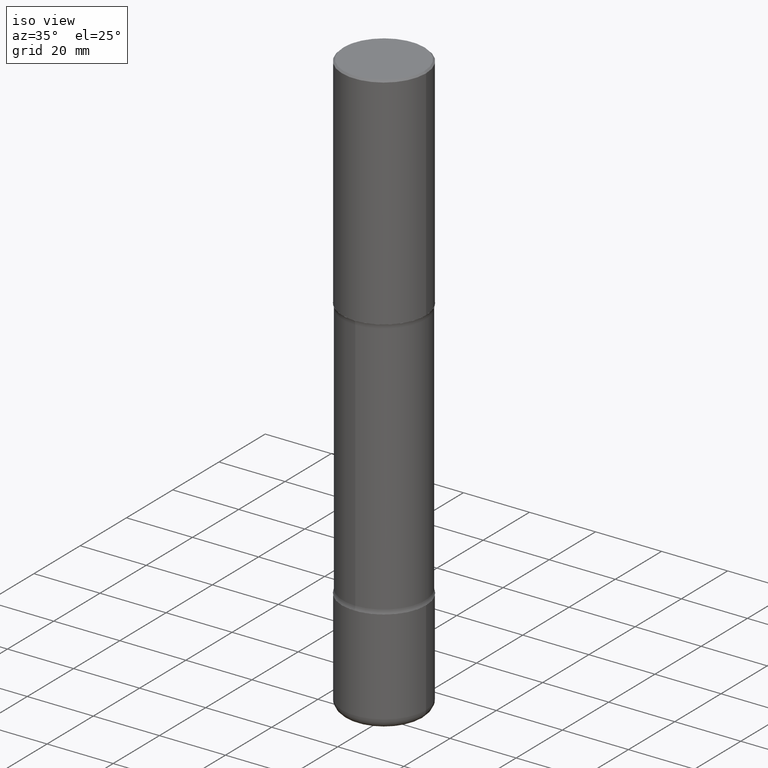
[diagram: clean part render]
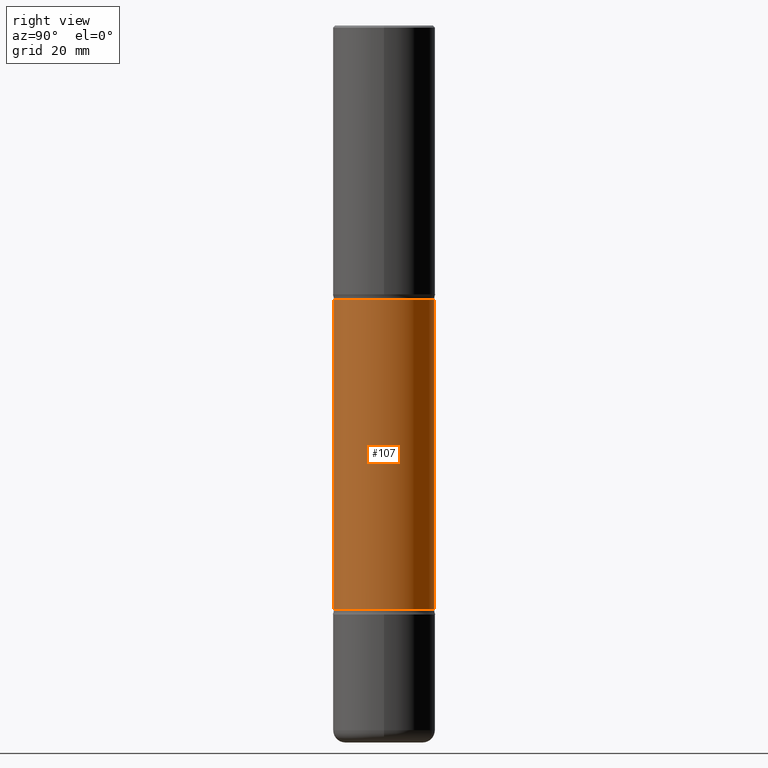
[diagram: tour spotlight — one face highlighted and labeled with its STEP entity id]
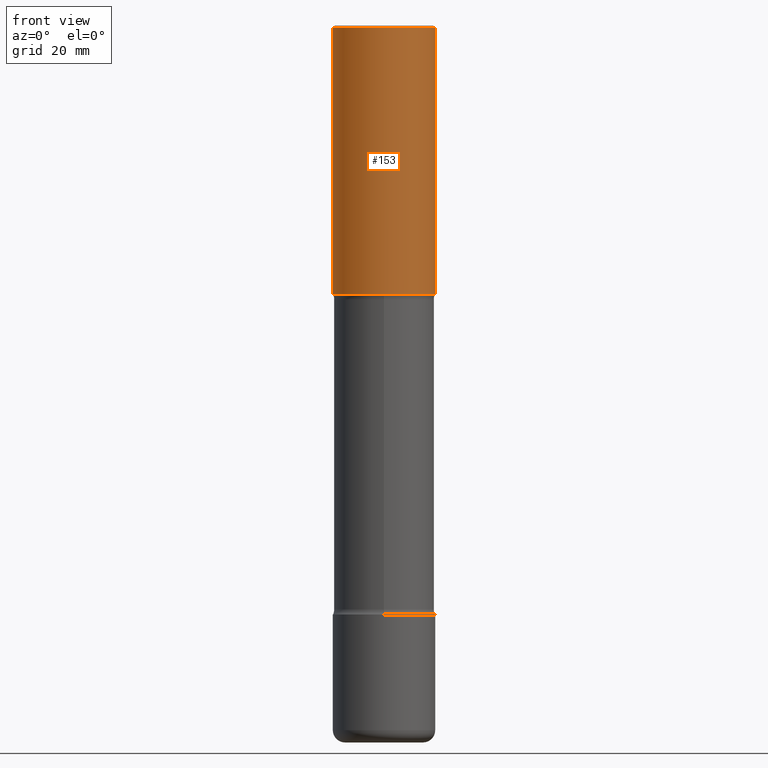
[diagram: tour spotlight — one face highlighted and labeled with its STEP entity id]
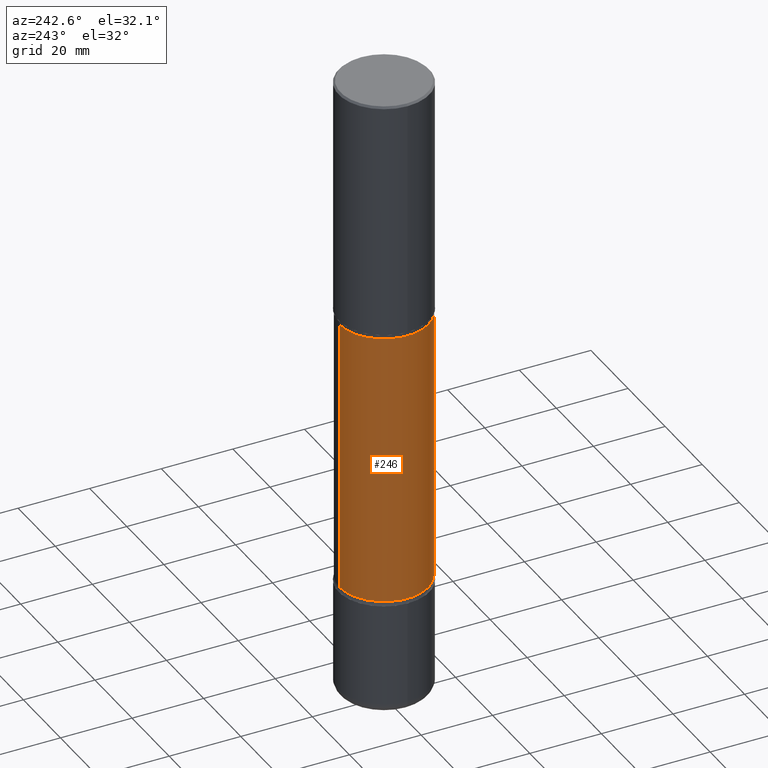
[diagram: tour spotlight — one face highlighted and labeled with its STEP entity id]
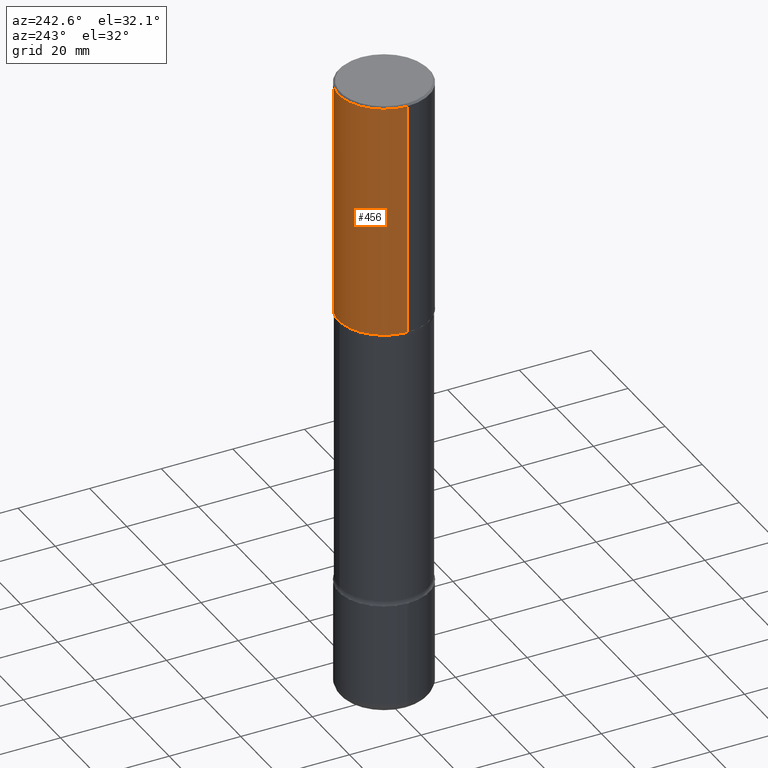
[diagram: tour spotlight — one face highlighted and labeled with its STEP entity id]
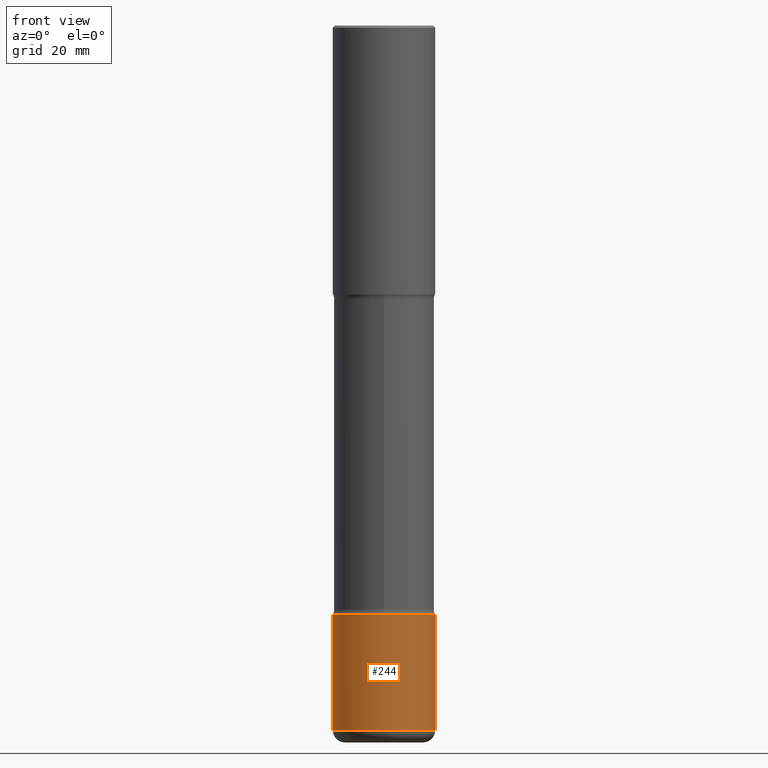
[diagram: tour spotlight — one face highlighted and labeled with its STEP entity id]
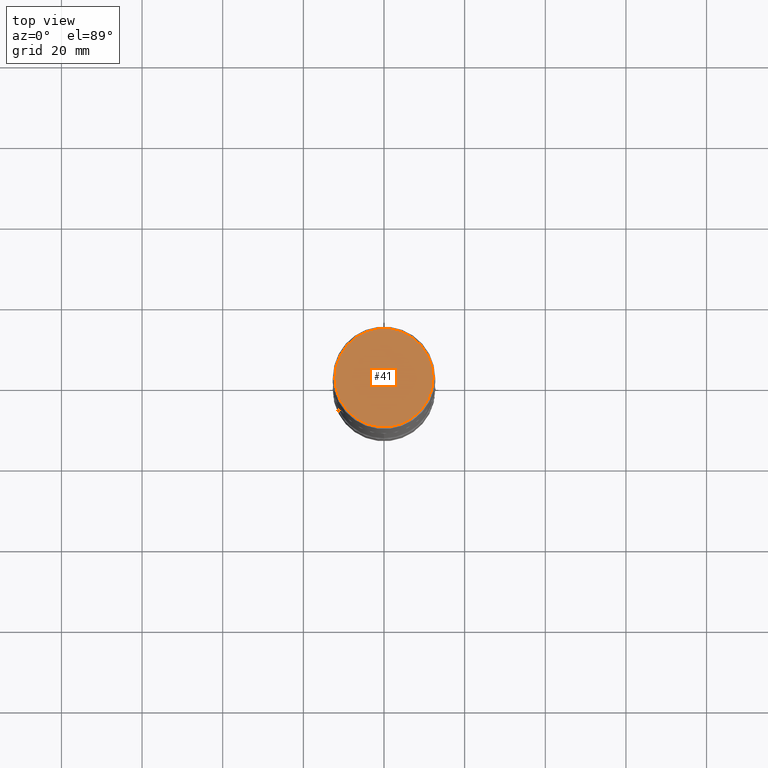
[diagram: tour spotlight — one face highlighted and labeled with its STEP entity id]
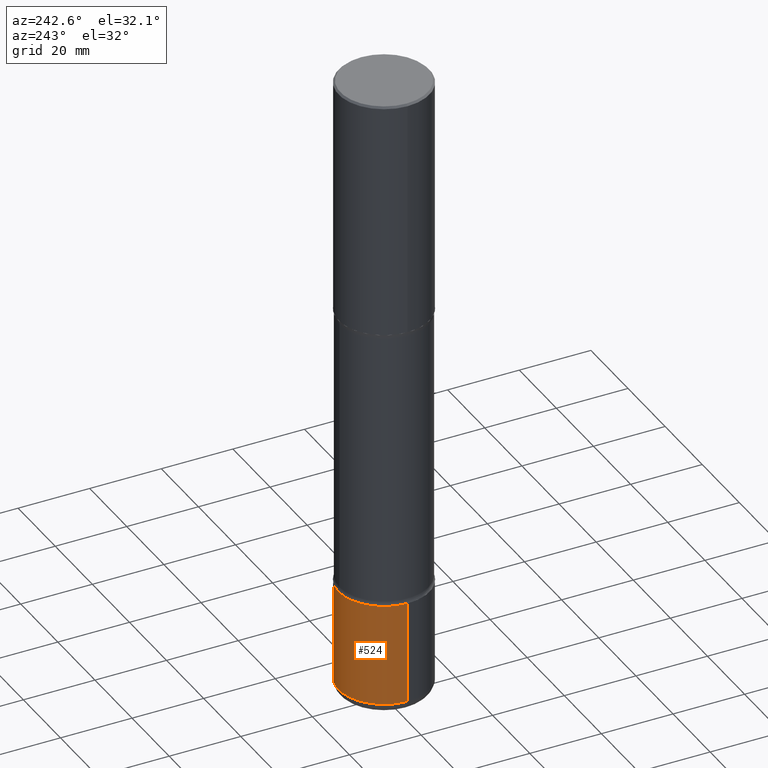
[diagram: tour spotlight — one face highlighted and labeled with its STEP entity id]
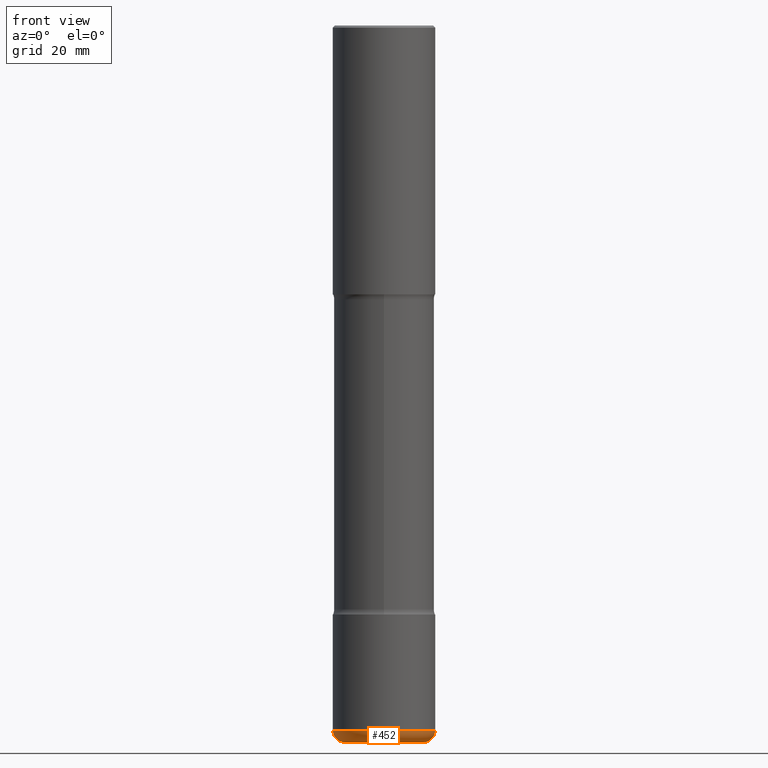
[diagram: tour spotlight — one face highlighted and labeled with its STEP entity id]
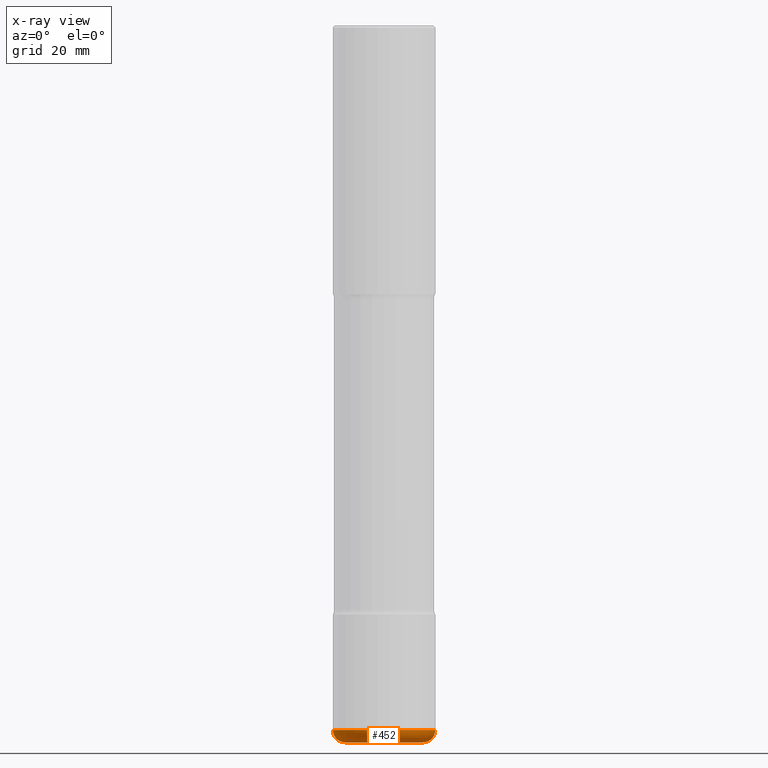
[diagram: x-ray of the same camera — body ghosted, this tour face saturated]
A machine part: a face-by-face anatomy tour. The part has 20 B-rep faces; the first image is the clean iso view, then the 8 largest visible faces are spotlighted one at a time (largest first), each with its STEP entity span.

Face 1 — right view, entity #107. In plain terms, the highlighted cylindrical surface (partial cylindrical patch) has radius 12.446 mm, axis along (0, -0, -1).
Definition (entity closure, byte-faithful):
#3 = ORIENTED_EDGE ( 'NONE', *, *, #283, .F. ) ;
#5 = LINE ( 'NONE', #340, #444 ) ;
#40 = LINE ( 'NONE', #239, #154 ) ;
#54 = VERTEX_POINT ( 'NONE', #401 ) ;
#58 = DIRECTION ( 'NONE',  ( 6.982962677686266711E-15, 1.000000000000000000, -4.460159989655937807E-15 ) ) ;
#107 = ADVANCED_FACE ( 'NONE', ( #280 ), #494, .T. ) ;
#113 = ORIENTED_EDGE ( 'NONE', *, *, #478, .T. ) ;
#120 = CIRCLE ( 'NONE', #140, 0.4900000000000003242 ) ;
#129 = DIRECTION ( 'NONE',  ( 2.521774376508615199E-29, -3.382207419096575054E-15, -1.000000000000000000 ) ) ;
#140 = AXIS2_PLACEMENT_3D ( 'NONE', #162, #368, #454 ) ;
#154 = VECTOR ( 'NONE', #366, 39.37007874015748143 ) ;
#160 = VERTEX_POINT ( 'NONE', #176 ) ;
#162 = CARTESIAN_POINT ( 'NONE',  ( 6.304441918352541244E-29, -9.672313161292138193E-15, -2.673989794855665014 ) ) ;
#174 = VERTEX_POINT ( 'NONE', #474 ) ;
#176 = CARTESIAN_POINT ( 'NONE',  ( 3.421651712066335533E-15, 0.4899999999999906097, -2.673989794855666347 ) ) ;
#186 = AXIS2_PLACEMENT_3D ( 'NONE', #476, #310, #58 ) ;
#194 = AXIS2_PLACEMENT_3D ( 'NONE', #351, #384, #463 ) ;
#221 = ORIENTED_EDGE ( 'NONE', *, *, #234, .F. ) ;
#222 = CIRCLE ( 'NONE', #194, 0.4900000000000002132 ) ;
#234 = EDGE_CURVE ( 'NONE', #549, #174, #222, .T. ) ;
#239 = CARTESIAN_POINT ( 'NONE',  ( -3.361644018907879661E-15, -0.4900000000000245270, -6.999999999999998224 ) ) ;
#280 = FACE_OUTER_BOUND ( 'NONE', #395, .T. ) ;
#283 = EDGE_CURVE ( 'NONE', #160, #549, #5, .T. ) ;
#310 = DIRECTION ( 'NONE',  ( 2.521774376508615199E-29, -3.382207419096575054E-15, -1.000000000000000000 ) ) ;
#340 = CARTESIAN_POINT ( 'NONE',  ( 3.421651712066444395E-15, 0.4899999999999758993, -7.000000000000002665 ) ) ;
#351 = CARTESIAN_POINT ( 'NONE',  ( 1.393790442618711164E-28, -1.991032405072724823E-14, -5.701010205144338094 ) ) ;
#366 = DIRECTION ( 'NONE',  ( 2.521774376508615199E-29, -3.382207419096575054E-15, -1.000000000000000000 ) ) ;
#368 = DIRECTION ( 'NONE',  ( 2.521774376508615199E-29, -3.382207419096575054E-15, -1.000000000000000000 ) ) ;
#384 = DIRECTION ( 'NONE',  ( 2.521774376508615199E-29, -3.382207419096575054E-15, -1.000000000000000000 ) ) ;
#395 = EDGE_LOOP ( 'NONE', ( #484, #113, #221, #3 ) ) ;
#401 = CARTESIAN_POINT ( 'NONE',  ( -3.395946508896849543E-15, -0.4900000000000100941, -2.673989794855663238 ) ) ;
#444 = VECTOR ( 'NONE', #129, 39.37007874015748143 ) ;
#454 = DIRECTION ( 'NONE',  ( 6.982962677686265922E-15, 1.000000000000000000, -3.345119992241952764E-15 ) ) ;
#461 = CARTESIAN_POINT ( 'NONE',  ( 3.421651712066411263E-15, 0.4899999999999802847, -5.701010205144339871 ) ) ;
#463 = DIRECTION ( 'NONE',  ( 6.982962677686266711E-15, 1.000000000000000000, -4.460159989655937807E-15 ) ) ;
#474 = CARTESIAN_POINT ( 'NONE',  ( -3.395946508896770262E-15, -0.4900000000000201972, -5.701010205144335430 ) ) ;
#476 = CARTESIAN_POINT ( 'NONE',  ( 1.721366360620030576E-28, -2.430377697221880819E-14, -7.000000000000000888 ) ) ;
#478 = EDGE_CURVE ( 'NONE', #54, #174, #40, .T. ) ;
#484 = ORIENTED_EDGE ( 'NONE', *, *, #501, .T. ) ;
#494 = CYLINDRICAL_SURFACE ( 'NONE', #186, 0.4900000000000002132 ) ;
#501 = EDGE_CURVE ( 'NONE', #160, #54, #120, .T. ) ;
#549 = VERTEX_POINT ( 'NONE', #461 ) ;

Face 2 — front view, entity #153. In plain terms, the highlighted cylindrical surface (partial cylindrical patch) has radius 12.7 mm, axis along (-0, 0, 1).
Definition (entity closure, byte-faithful):
#7 = AXIS2_PLACEMENT_3D ( 'NONE', #155, #455, #373 ) ;
#8 = DIRECTION ( 'NONE',  ( 1.000000000000000000, -6.982962677686267499E-15, 4.876176775795936353E-29 ) ) ;
#61 = VERTEX_POINT ( 'NONE', #149 ) ;
#68 = CARTESIAN_POINT ( 'NONE',  ( 0.5000000000000002220, -3.491481338843135327E-15, 2.438088387897969298E-29 ) ) ;
#88 = EDGE_CURVE ( 'NONE', #61, #416, #491, .T. ) ;
#100 = VERTEX_POINT ( 'NONE', #544 ) ;
#106 = EDGE_CURVE ( 'NONE', #416, #426, #438, .T. ) ;
#115 = VECTOR ( 'NONE', #307, 39.37007874015748143 ) ;
#149 = CARTESIAN_POINT ( 'NONE',  ( -0.5000000000000004441, -1.064770391819553504E-15, -2.625000000000000000 ) ) ;
#151 = LINE ( 'NONE', #68, #115 ) ;
#153 = ADVANCED_FACE ( 'NONE', ( #216 ), #433, .T. ) ;
#155 = CARTESIAN_POINT ( 'NONE',  ( 6.419355616235983567E-29, -9.165138514463256612E-15, -2.625000000000000000 ) ) ;
#169 = AXIS2_PLACEMENT_3D ( 'NONE', #204, #170, #8 ) ;
#170 = DIRECTION ( 'NONE',  ( -2.445468806185136597E-29, 3.491481338843145583E-15, 1.000000000000000000 ) ) ;
#191 = CARTESIAN_POINT ( 'NONE',  ( 4.890937612370299433E-31, -6.982962677686328587E-17, -0.02000000000000010797 ) ) ;
#204 = CARTESIAN_POINT ( 'NONE',  ( 0.000000000000000000, 0.000000000000000000, 0.000000000000000000 ) ) ;
#216 = FACE_OUTER_BOUND ( 'NONE', #465, .T. ) ;
#241 = CIRCLE ( 'NONE', #7, 0.5000000000000004441 ) ;
#252 = AXIS2_PLACEMENT_3D ( 'NONE', #191, #329, #323 ) ;
#306 = ORIENTED_EDGE ( 'NONE', *, *, #559, .T. ) ;
#307 = DIRECTION ( 'NONE',  ( -2.445468806185136877E-29, 3.491481338843145188E-15, 1.000000000000000000 ) ) ;
#323 = DIRECTION ( 'NONE',  ( 1.000000000000000000, -6.982962677686266711E-15, 0.000000000000000000 ) ) ;
#329 = DIRECTION ( 'NONE',  ( -2.445468806185136597E-29, 3.491481338843145583E-15, 1.000000000000000000 ) ) ;
#353 = CARTESIAN_POINT ( 'NONE',  ( -0.5000000000000000000, 3.421651712066270057E-15, -0.02000000000000010797 ) ) ;
#373 = DIRECTION ( 'NONE',  ( 1.000000000000000000, -6.982962677686268288E-15, 0.000000000000000000 ) ) ;
#416 = VERTEX_POINT ( 'NONE', #353 ) ;
#421 = DIRECTION ( 'NONE',  ( -2.445468806185136877E-29, 3.491481338843145188E-15, 1.000000000000000000 ) ) ;
#426 = VERTEX_POINT ( 'NONE', #446 ) ;
#433 = CYLINDRICAL_SURFACE ( 'NONE', #169, 0.5000000000000002220 ) ;
#437 = EDGE_CURVE ( 'NONE', #100, #426, #151, .T. ) ;
#438 = CIRCLE ( 'NONE', #252, 0.5000000000000000000 ) ;
#446 = CARTESIAN_POINT ( 'NONE',  ( 0.5000000000000000000, -3.500078625662629079E-15, -0.02000000000000010797 ) ) ;
#455 = DIRECTION ( 'NONE',  ( -2.445468806185136597E-29, 3.491481338843145583E-15, 1.000000000000000000 ) ) ;
#465 = EDGE_LOOP ( 'NONE', ( #514, #306, #551, #481 ) ) ;
#481 = ORIENTED_EDGE ( 'NONE', *, *, #106, .F. ) ;
#491 = LINE ( 'NONE', #552, #516 ) ;
#514 = ORIENTED_EDGE ( 'NONE', *, *, #88, .F. ) ;
#516 = VECTOR ( 'NONE', #421, 39.37007874015748143 ) ;
#544 = CARTESIAN_POINT ( 'NONE',  ( 0.5000000000000004441, -1.265661985330639470E-14, -2.625000000000000000 ) ) ;
#551 = ORIENTED_EDGE ( 'NONE', *, *, #437, .T. ) ;
#552 = CARTESIAN_POINT ( 'NONE',  ( -0.5000000000000002220, 3.552713678800502507E-15, -2.459467545127454292E-29 ) ) ;
#559 = EDGE_CURVE ( 'NONE', #61, #100, #241, .T. ) ;

Face 3 — auxiliary view, entity #246. In plain terms, the highlighted cylindrical surface (partial cylindrical patch) has radius 12.446 mm, axis along (0, -0, -1).
Definition (entity closure, byte-faithful):
#5 = LINE ( 'NONE', #340, #444 ) ;
#23 = ORIENTED_EDGE ( 'NONE', *, *, #271, .F. ) ;
#40 = LINE ( 'NONE', #239, #154 ) ;
#44 = AXIS2_PLACEMENT_3D ( 'NONE', #364, #535, #403 ) ;
#48 = DIRECTION ( 'NONE',  ( 2.521774376508615199E-29, -3.382207419096575054E-15, -1.000000000000000000 ) ) ;
#54 = VERTEX_POINT ( 'NONE', #401 ) ;
#87 = CYLINDRICAL_SURFACE ( 'NONE', #248, 0.4900000000000002132 ) ;
#102 = ORIENTED_EDGE ( 'NONE', *, *, #478, .F. ) ;
#127 = CIRCLE ( 'NONE', #212, 0.4900000000000002132 ) ;
#129 = DIRECTION ( 'NONE',  ( 2.521774376508615199E-29, -3.382207419096575054E-15, -1.000000000000000000 ) ) ;
#139 = DIRECTION ( 'NONE',  ( 6.982962677686266711E-15, 1.000000000000000000, -4.460159989655937807E-15 ) ) ;
#154 = VECTOR ( 'NONE', #366, 39.37007874015748143 ) ;
#160 = VERTEX_POINT ( 'NONE', #176 ) ;
#167 = DIRECTION ( 'NONE',  ( 6.982962677686266711E-15, 1.000000000000000000, -4.460159989655937807E-15 ) ) ;
#174 = VERTEX_POINT ( 'NONE', #474 ) ;
#176 = CARTESIAN_POINT ( 'NONE',  ( 3.421651712066335533E-15, 0.4899999999999906097, -2.673989794855666347 ) ) ;
#212 = AXIS2_PLACEMENT_3D ( 'NONE', #425, #48, #167 ) ;
#239 = CARTESIAN_POINT ( 'NONE',  ( -3.361644018907879661E-15, -0.4900000000000245270, -6.999999999999998224 ) ) ;
#246 = ADVANCED_FACE ( 'NONE', ( #303 ), #87, .T. ) ;
#248 = AXIS2_PLACEMENT_3D ( 'NONE', #560, #513, #139 ) ;
#271 = EDGE_CURVE ( 'NONE', #174, #549, #127, .T. ) ;
#283 = EDGE_CURVE ( 'NONE', #160, #549, #5, .T. ) ;
#303 = FACE_OUTER_BOUND ( 'NONE', #440, .T. ) ;
#314 = CIRCLE ( 'NONE', #44, 0.4900000000000003242 ) ;
#340 = CARTESIAN_POINT ( 'NONE',  ( 3.421651712066444395E-15, 0.4899999999999758993, -7.000000000000002665 ) ) ;
#342 = ORIENTED_EDGE ( 'NONE', *, *, #371, .T. ) ;
#364 = CARTESIAN_POINT ( 'NONE',  ( 6.304441918352541244E-29, -9.672313161292138193E-15, -2.673989794855665014 ) ) ;
#366 = DIRECTION ( 'NONE',  ( 2.521774376508615199E-29, -3.382207419096575054E-15, -1.000000000000000000 ) ) ;
#371 = EDGE_CURVE ( 'NONE', #54, #160, #314, .T. ) ;
#401 = CARTESIAN_POINT ( 'NONE',  ( -3.395946508896849543E-15, -0.4900000000000100941, -2.673989794855663238 ) ) ;
#403 = DIRECTION ( 'NONE',  ( 6.982962677686265922E-15, 1.000000000000000000, -3.345119992241952764E-15 ) ) ;
#425 = CARTESIAN_POINT ( 'NONE',  ( 1.393790442618711164E-28, -1.991032405072724823E-14, -5.701010205144338094 ) ) ;
#431 = ORIENTED_EDGE ( 'NONE', *, *, #283, .T. ) ;
#440 = EDGE_LOOP ( 'NONE', ( #102, #342, #431, #23 ) ) ;
#444 = VECTOR ( 'NONE', #129, 39.37007874015748143 ) ;
#461 = CARTESIAN_POINT ( 'NONE',  ( 3.421651712066411263E-15, 0.4899999999999802847, -5.701010205144339871 ) ) ;
#474 = CARTESIAN_POINT ( 'NONE',  ( -3.395946508896770262E-15, -0.4900000000000201972, -5.701010205144335430 ) ) ;
#478 = EDGE_CURVE ( 'NONE', #54, #174, #40, .T. ) ;
#513 = DIRECTION ( 'NONE',  ( 2.521774376508615199E-29, -3.382207419096575054E-15, -1.000000000000000000 ) ) ;
#535 = DIRECTION ( 'NONE',  ( 2.521774376508615199E-29, -3.382207419096575054E-15, -1.000000000000000000 ) ) ;
#549 = VERTEX_POINT ( 'NONE', #461 ) ;
#560 = CARTESIAN_POINT ( 'NONE',  ( 1.721366360620030576E-28, -2.430377697221880819E-14, -7.000000000000000888 ) ) ;

Face 4 — auxiliary view, entity #456. In plain terms, the highlighted cylindrical surface (partial cylindrical patch) has radius 12.7 mm, axis along (-0, 0, 1).
Definition (entity closure, byte-faithful):
#11 = CARTESIAN_POINT ( 'NONE',  ( 4.890937612370299433E-31, -6.982962677686328587E-17, -0.02000000000000010797 ) ) ;
#61 = VERTEX_POINT ( 'NONE', #149 ) ;
#63 = DIRECTION ( 'NONE',  ( -2.445468806185136597E-29, 3.491481338843145583E-15, 1.000000000000000000 ) ) ;
#68 = CARTESIAN_POINT ( 'NONE',  ( 0.5000000000000002220, -3.491481338843135327E-15, 2.438088387897969298E-29 ) ) ;
#88 = EDGE_CURVE ( 'NONE', #61, #416, #491, .T. ) ;
#100 = VERTEX_POINT ( 'NONE', #544 ) ;
#103 = FACE_OUTER_BOUND ( 'NONE', #197, .T. ) ;
#105 = ORIENTED_EDGE ( 'NONE', *, *, #159, .F. ) ;
#115 = VECTOR ( 'NONE', #307, 39.37007874015748143 ) ;
#119 = CIRCLE ( 'NONE', #497, 0.5000000000000004441 ) ;
#135 = ORIENTED_EDGE ( 'NONE', *, *, #88, .T. ) ;
#138 = CIRCLE ( 'NONE', #422, 0.5000000000000000000 ) ;
#149 = CARTESIAN_POINT ( 'NONE',  ( -0.5000000000000004441, -1.064770391819553504E-15, -2.625000000000000000 ) ) ;
#151 = LINE ( 'NONE', #68, #115 ) ;
#159 = EDGE_CURVE ( 'NONE', #426, #416, #138, .T. ) ;
#173 = DIRECTION ( 'NONE',  ( 1.000000000000000000, -6.982962677686266711E-15, 0.000000000000000000 ) ) ;
#197 = EDGE_LOOP ( 'NONE', ( #293, #135, #105, #198 ) ) ;
#198 = ORIENTED_EDGE ( 'NONE', *, *, #437, .F. ) ;
#273 = DIRECTION ( 'NONE',  ( 1.000000000000000000, -6.982962677686268288E-15, 0.000000000000000000 ) ) ;
#293 = ORIENTED_EDGE ( 'NONE', *, *, #382, .T. ) ;
#307 = DIRECTION ( 'NONE',  ( -2.445468806185136877E-29, 3.491481338843145188E-15, 1.000000000000000000 ) ) ;
#334 = AXIS2_PLACEMENT_3D ( 'NONE', #358, #531, #483 ) ;
#353 = CARTESIAN_POINT ( 'NONE',  ( -0.5000000000000000000, 3.421651712066270057E-15, -0.02000000000000010797 ) ) ;
#358 = CARTESIAN_POINT ( 'NONE',  ( 0.000000000000000000, 0.000000000000000000, 0.000000000000000000 ) ) ;
#382 = EDGE_CURVE ( 'NONE', #100, #61, #119, .T. ) ;
#416 = VERTEX_POINT ( 'NONE', #353 ) ;
#421 = DIRECTION ( 'NONE',  ( -2.445468806185136877E-29, 3.491481338843145188E-15, 1.000000000000000000 ) ) ;
#422 = AXIS2_PLACEMENT_3D ( 'NONE', #11, #430, #173 ) ;
#426 = VERTEX_POINT ( 'NONE', #446 ) ;
#430 = DIRECTION ( 'NONE',  ( -2.445468806185136597E-29, 3.491481338843145583E-15, 1.000000000000000000 ) ) ;
#437 = EDGE_CURVE ( 'NONE', #100, #426, #151, .T. ) ;
#441 = CARTESIAN_POINT ( 'NONE',  ( 6.419355616235983567E-29, -9.165138514463256612E-15, -2.625000000000000000 ) ) ;
#445 = CYLINDRICAL_SURFACE ( 'NONE', #334, 0.5000000000000002220 ) ;
#446 = CARTESIAN_POINT ( 'NONE',  ( 0.5000000000000000000, -3.500078625662629079E-15, -0.02000000000000010797 ) ) ;
#456 = ADVANCED_FACE ( 'NONE', ( #103 ), #445, .T. ) ;
#483 = DIRECTION ( 'NONE',  ( 1.000000000000000000, -6.982962677686267499E-15, 4.876176775795936353E-29 ) ) ;
#491 = LINE ( 'NONE', #552, #516 ) ;
#497 = AXIS2_PLACEMENT_3D ( 'NONE', #441, #63, #273 ) ;
#516 = VECTOR ( 'NONE', #421, 39.37007874015748143 ) ;
#531 = DIRECTION ( 'NONE',  ( -2.445468806185136597E-29, 3.491481338843145583E-15, 1.000000000000000000 ) ) ;
#544 = CARTESIAN_POINT ( 'NONE',  ( 0.5000000000000004441, -1.265661985330639470E-14, -2.625000000000000000 ) ) ;
#552 = CARTESIAN_POINT ( 'NONE',  ( -0.5000000000000002220, 3.552713678800502507E-15, -2.459467545127454292E-29 ) ) ;

Face 5 — front view, entity #244. In plain terms, the highlighted cylindrical surface (partial cylindrical patch) has radius 12.7 mm, axis along (-0, 0, 1).
Definition (entity closure, byte-faithful):
#6 = CIRCLE ( 'NONE', #361, 0.5000000000000005551 ) ;
#42 = ORIENTED_EDGE ( 'NONE', *, *, #468, .F. ) ;
#49 = ORIENTED_EDGE ( 'NONE', *, *, #488, .F. ) ;
#55 = DIRECTION ( 'NONE',  ( -2.445468806185136597E-29, 3.491481338843145583E-15, 1.000000000000000000 ) ) ;
#92 = VERTEX_POINT ( 'NONE', #163 ) ;
#94 = CYLINDRICAL_SURFACE ( 'NONE', #298, 0.5000000000000005551 ) ;
#96 = VECTOR ( 'NONE', #289, 39.37007874015748143 ) ;
#97 = CARTESIAN_POINT ( 'NONE',  ( -0.5000000000000004441, -1.849599097599396794E-14, -5.750000000000001776 ) ) ;
#111 = CARTESIAN_POINT ( 'NONE',  ( 1.682482538655374212E-28, -2.402139161124084521E-14, -6.880000000000000782 ) ) ;
#116 = VERTEX_POINT ( 'NONE', #97 ) ;
#122 = DIRECTION ( 'NONE',  ( -2.445468806185136597E-29, 3.491481338843145583E-15, 1.000000000000000000 ) ) ;
#146 = LINE ( 'NONE', #550, #96 ) ;
#161 = ORIENTED_EDGE ( 'NONE', *, *, #227, .T. ) ;
#163 = CARTESIAN_POINT ( 'NONE',  ( -0.5000000000000004441, -2.046867793244033797E-14, -6.880000000000000782 ) ) ;
#166 = CARTESIAN_POINT ( 'NONE',  ( 0.000000000000000000, 0.000000000000000000, 0.000000000000000000 ) ) ;
#171 = VERTEX_POINT ( 'NONE', #348 ) ;
#178 = DIRECTION ( 'NONE',  ( 1.000000000000000000, -6.982962677686270655E-15, 0.000000000000000000 ) ) ;
#183 = DIRECTION ( 'NONE',  ( -2.445468806185136597E-29, 3.491481338843145583E-15, 1.000000000000000000 ) ) ;
#199 = CARTESIAN_POINT ( 'NONE',  ( 0.5000000000000004441, -2.751287295008398487E-14, -6.880000000000000782 ) ) ;
#207 = DIRECTION ( 'NONE',  ( -2.445468806185136877E-29, 3.491481338843145188E-15, 1.000000000000000000 ) ) ;
#210 = FACE_OUTER_BOUND ( 'NONE', #365, .T. ) ;
#227 = EDGE_CURVE ( 'NONE', #496, #171, #381, .T. ) ;
#235 = DIRECTION ( 'NONE',  ( 1.000000000000000000, -6.982962677686264344E-15, 0.000000000000000000 ) ) ;
#244 = ADVANCED_FACE ( 'NONE', ( #210 ), #94, .T. ) ;
#289 = DIRECTION ( 'NONE',  ( -2.445468806185136877E-29, 3.491481338843145188E-15, 1.000000000000000000 ) ) ;
#296 = CARTESIAN_POINT ( 'NONE',  ( 0.5000000000000005551, -3.491481338843137300E-15, 2.438088387897970699E-29 ) ) ;
#298 = AXIS2_PLACEMENT_3D ( 'NONE', #166, #55, #521 ) ;
#299 = AXIS2_PLACEMENT_3D ( 'NONE', #490, #122, #235 ) ;
#348 = CARTESIAN_POINT ( 'NONE',  ( 0.5000000000000004441, -2.356749903719122903E-14, -5.750000000000001776 ) ) ;
#361 = AXIS2_PLACEMENT_3D ( 'NONE', #111, #183, #178 ) ;
#365 = EDGE_LOOP ( 'NONE', ( #42, #460, #161, #49 ) ) ;
#367 = EDGE_CURVE ( 'NONE', #92, #496, #6, .T. ) ;
#381 = LINE ( 'NONE', #296, #390 ) ;
#390 = VECTOR ( 'NONE', #207, 39.37007874015748143 ) ;
#460 = ORIENTED_EDGE ( 'NONE', *, *, #367, .T. ) ;
#464 = CIRCLE ( 'NONE', #299, 0.5000000000000004441 ) ;
#468 = EDGE_CURVE ( 'NONE', #92, #116, #146, .T. ) ;
#488 = EDGE_CURVE ( 'NONE', #116, #171, #464, .T. ) ;
#490 = CARTESIAN_POINT ( 'NONE',  ( 1.406144563556453992E-28, -2.007601769834809568E-14, -5.750000000000001776 ) ) ;
#496 = VERTEX_POINT ( 'NONE', #199 ) ;
#521 = DIRECTION ( 'NONE',  ( 1.000000000000000000, -6.982962677686266711E-15, 4.876176775795935793E-29 ) ) ;
#550 = CARTESIAN_POINT ( 'NONE',  ( -0.5000000000000005551, 3.552713678800504874E-15, -2.459467545127455413E-29 ) ) ;

Face 6 — top view, entity #41. In plain terms, the highlighted planar face has unit normal (0, -0, -1).
Definition (entity closure, byte-faithful):
#28 = DIRECTION ( 'NONE',  ( -1.000000000000000000, 6.982962677686265922E-15, -4.876176775795935793E-29 ) ) ;
#41 = ADVANCED_FACE ( 'NONE', ( #485 ), #75, .F. ) ;
#56 = AXIS2_PLACEMENT_3D ( 'NONE', #508, #136, #256 ) ;
#70 = CIRCLE ( 'NONE', #240, 0.4799999999999999267 ) ;
#75 = PLANE ( 'NONE',  #548 ) ;
#90 = VERTEX_POINT ( 'NONE', #121 ) ;
#121 = CARTESIAN_POINT ( 'NONE',  ( -0.4799999999999999267, 3.386736898677838802E-15, 1.707404996037808406E-17 ) ) ;
#136 = DIRECTION ( 'NONE',  ( -2.445468806185136597E-29, 3.491481338843145583E-15, 1.000000000000000000 ) ) ;
#215 = EDGE_CURVE ( 'NONE', #90, #347, #325, .T. ) ;
#226 = DIRECTION ( 'NONE',  ( 2.438088387897960049E-29, -3.491481338843145188E-15, -1.000000000000000000 ) ) ;
#229 = DIRECTION ( 'NONE',  ( 1.000000000000000000, -6.982962677686266711E-15, 4.876431871984414276E-29 ) ) ;
#240 = AXIS2_PLACEMENT_3D ( 'NONE', #406, #315, #229 ) ;
#256 = DIRECTION ( 'NONE',  ( 1.000000000000000000, -6.982962677686266711E-15, 4.876431871984414276E-29 ) ) ;
#284 = CARTESIAN_POINT ( 'NONE',  ( 3.351822085289407153E-15, 0.4799999999999999267, -1.667374017664508837E-15 ) ) ;
#288 = ORIENTED_EDGE ( 'NONE', *, *, #215, .T. ) ;
#315 = DIRECTION ( 'NONE',  ( -2.445468806185136597E-29, 3.491481338843145583E-15, 1.000000000000000000 ) ) ;
#320 = CARTESIAN_POINT ( 'NONE',  ( 0.4799999999999999267, -3.396558832296482099E-15, 1.707404996042524007E-17 ) ) ;
#325 = CIRCLE ( 'NONE', #56, 0.4799999999999999267 ) ;
#336 = EDGE_CURVE ( 'NONE', #347, #90, #70, .T. ) ;
#347 = VERTEX_POINT ( 'NONE', #320 ) ;
#354 = ORIENTED_EDGE ( 'NONE', *, *, #336, .T. ) ;
#359 = EDGE_LOOP ( 'NONE', ( #288, #354 ) ) ;
#406 = CARTESIAN_POINT ( 'NONE',  ( -4.175405657340879278E-46, 5.961372681521788801E-32, 1.707404996040164512E-17 ) ) ;
#485 = FACE_OUTER_BOUND ( 'NONE', #359, .T. ) ;
#508 = CARTESIAN_POINT ( 'NONE',  ( -4.175405657340879278E-46, 5.961372681521788801E-32, 1.707404996040164512E-17 ) ) ;
#548 = AXIS2_PLACEMENT_3D ( 'NONE', #284, #226, #28 ) ;

Face 7 — auxiliary view, entity #524. In plain terms, the highlighted cylindrical surface (partial cylindrical patch) has radius 12.7 mm, axis along (-0, 0, 1).
Definition (entity closure, byte-faithful):
#12 = EDGE_CURVE ( 'NONE', #496, #92, #392, .T. ) ;
#73 = FACE_OUTER_BOUND ( 'NONE', #339, .T. ) ;
#78 = CIRCLE ( 'NONE', #188, 0.5000000000000004441 ) ;
#92 = VERTEX_POINT ( 'NONE', #163 ) ;
#96 = VECTOR ( 'NONE', #289, 39.37007874015748143 ) ;
#97 = CARTESIAN_POINT ( 'NONE',  ( -0.5000000000000004441, -1.849599097599396794E-14, -5.750000000000001776 ) ) ;
#98 = EDGE_CURVE ( 'NONE', #171, #116, #78, .T. ) ;
#116 = VERTEX_POINT ( 'NONE', #97 ) ;
#123 = DIRECTION ( 'NONE',  ( 1.000000000000000000, -6.982962677686264344E-15, 0.000000000000000000 ) ) ;
#146 = LINE ( 'NONE', #550, #96 ) ;
#152 = CYLINDRICAL_SURFACE ( 'NONE', #316, 0.5000000000000005551 ) ;
#156 = AXIS2_PLACEMENT_3D ( 'NONE', #257, #385, #515 ) ;
#163 = CARTESIAN_POINT ( 'NONE',  ( -0.5000000000000004441, -2.046867793244033797E-14, -6.880000000000000782 ) ) ;
#171 = VERTEX_POINT ( 'NONE', #348 ) ;
#188 = AXIS2_PLACEMENT_3D ( 'NONE', #203, #557, #123 ) ;
#192 = CARTESIAN_POINT ( 'NONE',  ( 0.000000000000000000, 0.000000000000000000, 0.000000000000000000 ) ) ;
#199 = CARTESIAN_POINT ( 'NONE',  ( 0.5000000000000004441, -2.751287295008398487E-14, -6.880000000000000782 ) ) ;
#203 = CARTESIAN_POINT ( 'NONE',  ( 1.406144563556453992E-28, -2.007601769834809568E-14, -5.750000000000001776 ) ) ;
#207 = DIRECTION ( 'NONE',  ( -2.445468806185136877E-29, 3.491481338843145188E-15, 1.000000000000000000 ) ) ;
#227 = EDGE_CURVE ( 'NONE', #496, #171, #381, .T. ) ;
#242 = ORIENTED_EDGE ( 'NONE', *, *, #227, .F. ) ;
#254 = ORIENTED_EDGE ( 'NONE', *, *, #468, .T. ) ;
#257 = CARTESIAN_POINT ( 'NONE',  ( 1.682482538655374212E-28, -2.402139161124084521E-14, -6.880000000000000782 ) ) ;
#289 = DIRECTION ( 'NONE',  ( -2.445468806185136877E-29, 3.491481338843145188E-15, 1.000000000000000000 ) ) ;
#296 = CARTESIAN_POINT ( 'NONE',  ( 0.5000000000000005551, -3.491481338843137300E-15, 2.438088387897970699E-29 ) ) ;
#297 = ORIENTED_EDGE ( 'NONE', *, *, #12, .T. ) ;
#316 = AXIS2_PLACEMENT_3D ( 'NONE', #192, #330, #493 ) ;
#330 = DIRECTION ( 'NONE',  ( -2.445468806185136597E-29, 3.491481338843145583E-15, 1.000000000000000000 ) ) ;
#339 = EDGE_LOOP ( 'NONE', ( #297, #254, #405, #242 ) ) ;
#348 = CARTESIAN_POINT ( 'NONE',  ( 0.5000000000000004441, -2.356749903719122903E-14, -5.750000000000001776 ) ) ;
#381 = LINE ( 'NONE', #296, #390 ) ;
#385 = DIRECTION ( 'NONE',  ( -2.445468806185136597E-29, 3.491481338843145583E-15, 1.000000000000000000 ) ) ;
#390 = VECTOR ( 'NONE', #207, 39.37007874015748143 ) ;
#392 = CIRCLE ( 'NONE', #156, 0.5000000000000005551 ) ;
#405 = ORIENTED_EDGE ( 'NONE', *, *, #98, .F. ) ;
#468 = EDGE_CURVE ( 'NONE', #92, #116, #146, .T. ) ;
#493 = DIRECTION ( 'NONE',  ( 1.000000000000000000, -6.982962677686266711E-15, 4.876176775795935793E-29 ) ) ;
#496 = VERTEX_POINT ( 'NONE', #199 ) ;
#515 = DIRECTION ( 'NONE',  ( 1.000000000000000000, -6.982962677686270655E-15, 0.000000000000000000 ) ) ;
#524 = ADVANCED_FACE ( 'NONE', ( #73 ), #152, .T. ) ;
#550 = CARTESIAN_POINT ( 'NONE',  ( -0.5000000000000005551, 3.552713678800504874E-15, -2.459467545127455413E-29 ) ) ;
#557 = DIRECTION ( 'NONE',  ( -2.445468806185136597E-29, 3.491481338843145583E-15, 1.000000000000000000 ) ) ;

Face 8 — front view, entity #452. An x-ray twin of the same camera follows (body ghosted, this face saturated) — the face is partly hidden behind the body. In plain terms, the highlighted toroidal blend (fillet) surface has major radius 9.652 mm and minor (blend) radius 3.048 mm.
Definition (entity closure, byte-faithful):
#6 = CIRCLE ( 'NONE', #361, 0.5000000000000005551 ) ;
#13 = DIRECTION ( 'NONE',  ( 1.000000000000000000, -6.982962677686274599E-15, 0.000000000000000000 ) ) ;
#19 = DIRECTION ( 'NONE',  ( 7.105427357601001859E-15, 1.000000000000000000, -3.491481338843145583E-15 ) ) ;
#20 = ORIENTED_EDGE ( 'NONE', *, *, #66, .F. ) ;
#22 = CARTESIAN_POINT ( 'NONE',  ( 0.3800000000000005040, -2.667491742876163160E-14, -6.880000000000000782 ) ) ;
#29 = AXIS2_PLACEMENT_3D ( 'NONE', #114, #486, #275 ) ;
#66 = EDGE_CURVE ( 'NONE', #317, #92, #76, .T. ) ;
#69 = CARTESIAN_POINT ( 'NONE',  ( -0.3800000000000005040, -2.110449245422699151E-14, -7.000000000000000888 ) ) ;
#76 = CIRCLE ( 'NONE', #164, 0.1199999999999998845 ) ;
#92 = VERTEX_POINT ( 'NONE', #163 ) ;
#111 = CARTESIAN_POINT ( 'NONE',  ( 1.682482538655374212E-28, -2.402139161124084521E-14, -6.880000000000000782 ) ) ;
#114 = CARTESIAN_POINT ( 'NONE',  ( 1.682482538655374212E-28, -2.402139161124084521E-14, -6.880000000000000782 ) ) ;
#117 = CARTESIAN_POINT ( 'NONE',  ( 1.711828164329595618E-28, -2.444036937190202184E-14, -7.000000000000000888 ) ) ;
#130 = ORIENTED_EDGE ( 'NONE', *, *, #367, .F. ) ;
#163 = CARTESIAN_POINT ( 'NONE',  ( -0.5000000000000004441, -2.046867793244033797E-14, -6.880000000000000782 ) ) ;
#164 = AXIS2_PLACEMENT_3D ( 'NONE', #321, #19, #453 ) ;
#178 = DIRECTION ( 'NONE',  ( 1.000000000000000000, -6.982962677686270655E-15, 0.000000000000000000 ) ) ;
#183 = DIRECTION ( 'NONE',  ( -2.445468806185136597E-29, 3.491481338843145583E-15, 1.000000000000000000 ) ) ;
#199 = CARTESIAN_POINT ( 'NONE',  ( 0.5000000000000004441, -2.751287295008398487E-14, -6.880000000000000782 ) ) ;
#247 = ORIENTED_EDGE ( 'NONE', *, *, #504, .T. ) ;
#265 = EDGE_LOOP ( 'NONE', ( #20, #247, #266, #130 ) ) ;
#266 = ORIENTED_EDGE ( 'NONE', *, *, #360, .T. ) ;
#274 = DIRECTION ( 'NONE',  ( -6.982962677686266711E-15, -1.000000000000000000, 3.491481338843145583E-15 ) ) ;
#275 = DIRECTION ( 'NONE',  ( 1.000000000000000000, -6.982962677686265133E-15, 4.883557194083111780E-29 ) ) ;
#278 = AXIS2_PLACEMENT_3D ( 'NONE', #22, #274, #13 ) ;
#294 = VERTEX_POINT ( 'NONE', #408 ) ;
#311 = FACE_OUTER_BOUND ( 'NONE', #265, .T. ) ;
#317 = VERTEX_POINT ( 'NONE', #69 ) ;
#321 = CARTESIAN_POINT ( 'NONE',  ( -0.3800000000000005040, -2.132132921535246210E-14, -6.880000000000000782 ) ) ;
#360 = EDGE_CURVE ( 'NONE', #294, #496, #377, .T. ) ;
#361 = AXIS2_PLACEMENT_3D ( 'NONE', #111, #183, #178 ) ;
#363 = AXIS2_PLACEMENT_3D ( 'NONE', #117, #555, #451 ) ;
#367 = EDGE_CURVE ( 'NONE', #92, #496, #6, .T. ) ;
#377 = CIRCLE ( 'NONE', #278, 0.1199999999999998845 ) ;
#408 = CARTESIAN_POINT ( 'NONE',  ( 0.3800000000000005040, -2.709389518942280824E-14, -7.000000000000000888 ) ) ;
#451 = DIRECTION ( 'NONE',  ( 1.000000000000000000, -6.982962677686273021E-15, 0.000000000000000000 ) ) ;
#452 = ADVANCED_FACE ( 'NONE', ( #311 ), #489, .T. ) ;
#453 = DIRECTION ( 'NONE',  ( -1.000000000000000000, 7.105427357600997914E-15, 0.000000000000000000 ) ) ;
#486 = DIRECTION ( 'NONE',  ( -2.445468806185136597E-29, 3.491481338843145583E-15, 1.000000000000000000 ) ) ;
#489 = TOROIDAL_SURFACE ( 'NONE', #29, 0.3800000000000005040, 0.1199999999999999123 ) ;
#496 = VERTEX_POINT ( 'NONE', #199 ) ;
#504 = EDGE_CURVE ( 'NONE', #317, #294, #534, .T. ) ;
#534 = CIRCLE ( 'NONE', #363, 0.3800000000000005040 ) ;
#555 = DIRECTION ( 'NONE',  ( -2.445468806185136597E-29, 3.491481338843145583E-15, 1.000000000000000000 ) ) ;